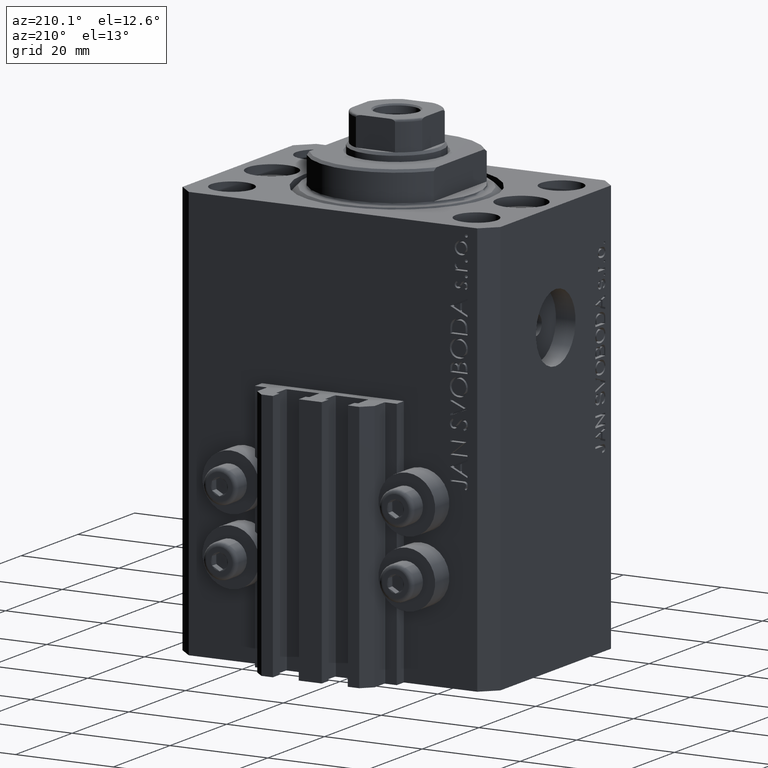
[diagram: clean part render]
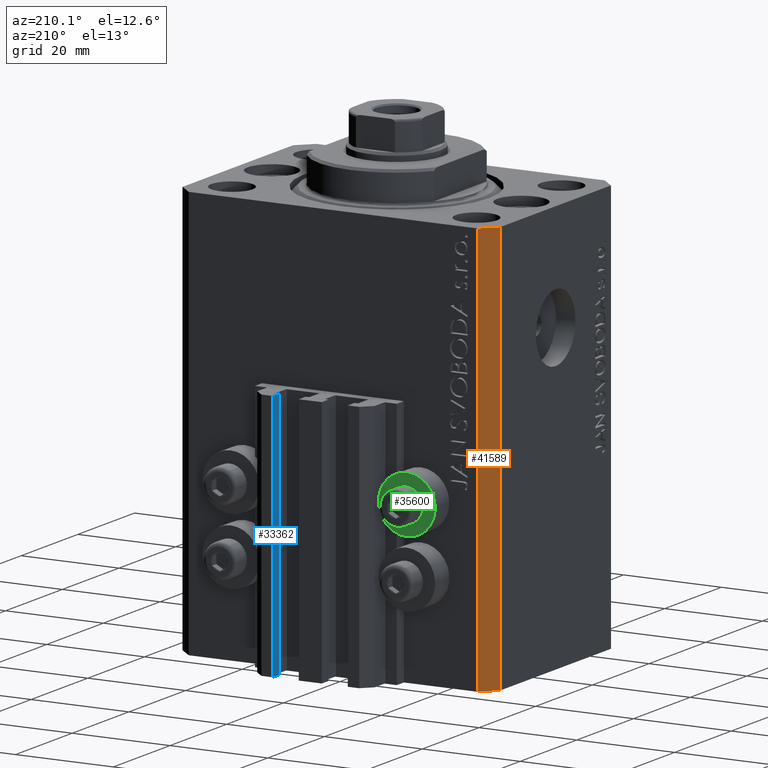
[diagram: same view with three faces highlighted in distinct colors, each labeled with its STEP entity id]
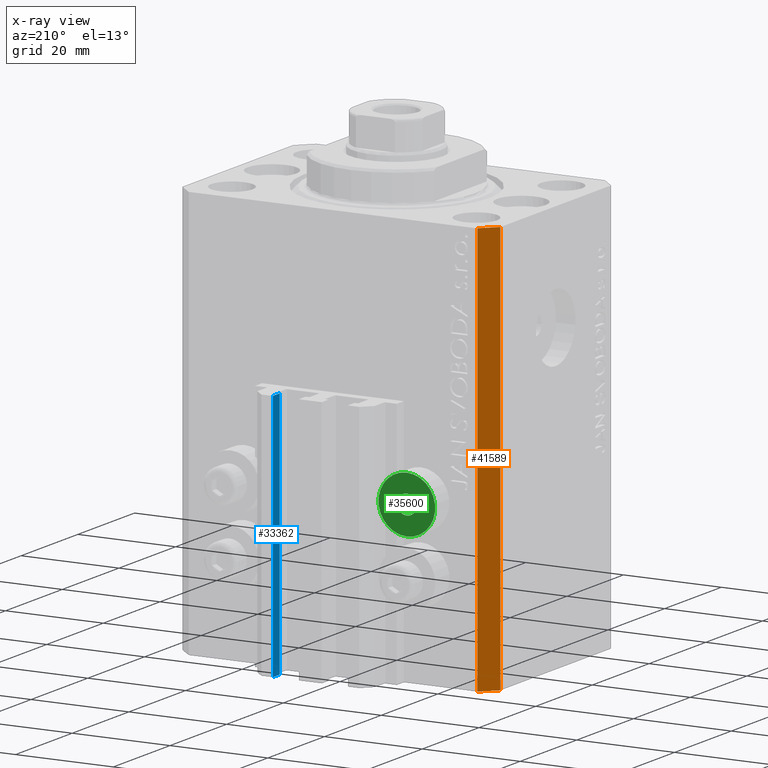
[diagram: x-ray of the same camera — body ghosted, the three highlighted faces saturated]
A machine part, auxiliary view with three faces highlighted in distinct colors.
The next image is the same camera in x-ray (body ghosted, the three faces saturated) — at least one of them is partly hidden behind the body in this view.
Their STEP definitions:

[orange] entity #41589 — the highlighted planar face has unit normal (-0.7071, 0.7071, 0).
#51 = CARTESIAN_POINT ( 'NONE',  ( -29.49999999999650413, 22.49999999999949907, 0.000000000000000000 ) ) ;
#397 = VERTEX_POINT ( 'NONE', #28462 ) ;
#2373 = CARTESIAN_POINT ( 'NONE',  ( -32.49999999999650413, 19.49999999999949907, -84.00000000000000000 ) ) ;
#3519 = EDGE_LOOP ( 'NONE', ( #45911, #42032, #19984, #19112 ) ) ;
#4166 = LINE ( 'NONE', #7509, #43514 ) ;
#4969 = AXIS2_PLACEMENT_3D ( 'NONE', #46401, #21113, #20653 ) ;
#5034 = LINE ( 'NONE', #2373, #6596 ) ;
#6596 = VECTOR ( 'NONE', #16926, 1000.000000000000000 ) ;
#7509 = CARTESIAN_POINT ( 'NONE',  ( -29.49999999999650413, 22.49999999999949907, -84.00000000000000000 ) ) ;
#7609 = EDGE_CURVE ( 'NONE', #32660, #46155, #29611, .T. ) ;
#9686 = FACE_OUTER_BOUND ( 'NONE', #3519, .T. ) ;
#12155 = EDGE_CURVE ( 'NONE', #397, #36096, #32424, .T. ) ;
#16926 = DIRECTION ( 'NONE',  ( 0.000000000000000000, 0.000000000000000000, 1.000000000000000000 ) ) ;
#17819 = VECTOR ( 'NONE', #21969, 1000.000000000000114 ) ;
#19112 = ORIENTED_EDGE ( 'NONE', *, *, #46066, .T. ) ;
#19984 = ORIENTED_EDGE ( 'NONE', *, *, #12155, .T. ) ;
#20653 = DIRECTION ( 'NONE',  ( -0.7071067811865474617, -0.7071067811865474617, 0.000000000000000000 ) ) ;
#21113 = DIRECTION ( 'NONE',  ( -0.7071067811865475727, 0.7071067811865475727, 0.000000000000000000 ) ) ;
#21476 = CARTESIAN_POINT ( 'NONE',  ( -29.49999999999650413, 22.49999999999949907, 0.000000000000000000 ) ) ;
#21969 = DIRECTION ( 'NONE',  ( -0.7071067811865474617, -0.7071067811865474617, 0.000000000000000000 ) ) ;
#28462 = CARTESIAN_POINT ( 'NONE',  ( -29.49999999999650413, 22.49999999999949907, -84.00000000000000000 ) ) ;
#29334 = CARTESIAN_POINT ( 'NONE',  ( -29.49999999999650413, 22.49999999999949907, -84.00000000000000000 ) ) ;
#29611 = LINE ( 'NONE', #21476, #17819 ) ;
#31300 = EDGE_CURVE ( 'NONE', #397, #32660, #4166, .T. ) ;
#31851 = PLANE ( 'NONE',  #4969 ) ;
#32424 = LINE ( 'NONE', #29334, #43851 ) ;
#32656 = CARTESIAN_POINT ( 'NONE',  ( -32.49999999999650413, 19.49999999999949907, 0.000000000000000000 ) ) ;
#32660 = VERTEX_POINT ( 'NONE', #51 ) ;
#36096 = VERTEX_POINT ( 'NONE', #44213 ) ;
#41589 = ADVANCED_FACE ( 'NONE', ( #9686 ), #31851, .T. ) ;
#42032 = ORIENTED_EDGE ( 'NONE', *, *, #31300, .F. ) ;
#43514 = VECTOR ( 'NONE', #45354, 1000.000000000000000 ) ;
#43851 = VECTOR ( 'NONE', #46986, 1000.000000000000114 ) ;
#44213 = CARTESIAN_POINT ( 'NONE',  ( -32.49999999999650413, 19.49999999999949907, -84.00000000000000000 ) ) ;
#45354 = DIRECTION ( 'NONE',  ( 0.000000000000000000, 0.000000000000000000, 1.000000000000000000 ) ) ;
#45911 = ORIENTED_EDGE ( 'NONE', *, *, #7609, .F. ) ;
#46066 = EDGE_CURVE ( 'NONE', #36096, #46155, #5034, .T. ) ;
#46155 = VERTEX_POINT ( 'NONE', #32656 ) ;
#46401 = CARTESIAN_POINT ( 'NONE',  ( -29.49999999999650413, 22.49999999999949907, -84.00000000000000000 ) ) ;
#46986 = DIRECTION ( 'NONE',  ( -0.7071067811865474617, -0.7071067811865474617, 0.000000000000000000 ) ) ;

[blue] entity #33362 — the highlighted planar face has unit normal (-1, -0, 0).
#565 = DIRECTION ( 'NONE',  ( 3.614007241618365534E-16, -1.000000000000000000, 0.000000000000000000 ) ) ;
#2073 = ORIENTED_EDGE ( 'NONE', *, *, #16237, .F. ) ;
#3496 = EDGE_CURVE ( 'NONE', #29297, #38063, #22223, .T. ) ;
#3659 = VECTOR ( 'NONE', #43927, 1000.000000000000000 ) ;
#4259 = CARTESIAN_POINT ( 'NONE',  ( 7.649999999999995026, 30.49999999999949196, -84.00000000000000000 ) ) ;
#9367 = EDGE_LOOP ( 'NONE', ( #43770, #2073, #15001, #23646 ) ) ;
#10769 = CARTESIAN_POINT ( 'NONE',  ( 7.649999999999995026, 30.49999999999949196, -84.00000000000000000 ) ) ;
#11319 = PLANE ( 'NONE',  #36716 ) ;
#11385 = CARTESIAN_POINT ( 'NONE',  ( 7.649999999999995914, 28.09999999999950404, -84.00000000000000000 ) ) ;
#12260 = EDGE_CURVE ( 'NONE', #45281, #38063, #18851, .T. ) ;
#14382 = CARTESIAN_POINT ( 'NONE',  ( 7.649999999999995026, 30.49999999999949196, -33.00000000000000000 ) ) ;
#14640 = FACE_OUTER_BOUND ( 'NONE', #9367, .T. ) ;
#15001 = ORIENTED_EDGE ( 'NONE', *, *, #40504, .T. ) ;
#15236 = DIRECTION ( 'NONE',  ( 3.614007241618365534E-16, -1.000000000000000000, 0.000000000000000000 ) ) ;
#16237 = EDGE_CURVE ( 'NONE', #31633, #29297, #17913, .T. ) ;
#17913 = LINE ( 'NONE', #10769, #41661 ) ;
#18851 = LINE ( 'NONE', #44366, #43075 ) ;
#21207 = CARTESIAN_POINT ( 'NONE',  ( 7.649999999999995026, 30.49999999999949196, -84.00000000000000000 ) ) ;
#22223 = LINE ( 'NONE', #25815, #3659 ) ;
#23646 = ORIENTED_EDGE ( 'NONE', *, *, #12260, .T. ) ;
#25309 = DIRECTION ( 'NONE',  ( 0.000000000000000000, 0.000000000000000000, 1.000000000000000000 ) ) ;
#25815 = CARTESIAN_POINT ( 'NONE',  ( 7.649999999999995026, 30.49999999999949196, -33.00000000000000000 ) ) ;
#26339 = CARTESIAN_POINT ( 'NONE',  ( 7.649999999999995026, 30.49999999999949196, -84.00000000000000000 ) ) ;
#29297 = VERTEX_POINT ( 'NONE', #14382 ) ;
#29993 = VECTOR ( 'NONE', #15236, 1000.000000000000000 ) ;
#31633 = VERTEX_POINT ( 'NONE', #21207 ) ;
#33253 = DIRECTION ( 'NONE',  ( -1.000000000000000000, -3.614007241618365534E-16, 0.000000000000000000 ) ) ;
#33362 = ADVANCED_FACE ( 'NONE', ( #14640 ), #11319, .T. ) ;
#36097 = CARTESIAN_POINT ( 'NONE',  ( 7.649999999999995914, 28.09999999999950404, -33.00000000000000000 ) ) ;
#36716 = AXIS2_PLACEMENT_3D ( 'NONE', #26339, #33253, #565 ) ;
#36935 = LINE ( 'NONE', #4259, #29993 ) ;
#38063 = VERTEX_POINT ( 'NONE', #36097 ) ;
#40504 = EDGE_CURVE ( 'NONE', #31633, #45281, #36935, .T. ) ;
#41661 = VECTOR ( 'NONE', #25309, 1000.000000000000000 ) ;
#43075 = VECTOR ( 'NONE', #44840, 1000.000000000000000 ) ;
#43770 = ORIENTED_EDGE ( 'NONE', *, *, #3496, .F. ) ;
#43927 = DIRECTION ( 'NONE',  ( 3.614007241618365534E-16, -1.000000000000000000, 0.000000000000000000 ) ) ;
#44366 = CARTESIAN_POINT ( 'NONE',  ( 7.649999999999995914, 28.09999999999950404, -84.00000000000000000 ) ) ;
#44840 = DIRECTION ( 'NONE',  ( 0.000000000000000000, 0.000000000000000000, 1.000000000000000000 ) ) ;
#45281 = VERTEX_POINT ( 'NONE', #11385 ) ;

[green] entity #35600 — the highlighted planar face has unit normal (0, -1, 0).
#854 = EDGE_LOOP ( 'NONE', ( #26531, #4633 ) ) ;
#1705 = CARTESIAN_POINT ( 'NONE',  ( -18.00000000000000355, 27.49999999996051514, -50.39999999999999858 ) ) ;
#1733 = AXIS2_PLACEMENT_3D ( 'NONE', #1705, #8885, #31053 ) ;
#2383 = EDGE_CURVE ( 'NONE', #5724, #41838, #22696, .T. ) ;
#3354 = PLANE ( 'NONE',  #36821 ) ;
#3846 = FACE_OUTER_BOUND ( 'NONE', #854, .T. ) ;
#4633 = ORIENTED_EDGE ( 'NONE', *, *, #42058, .T. ) ;
#4676 = CARTESIAN_POINT ( 'NONE',  ( -18.00000000000000355, 27.49999999996051514, -50.39999999999999858 ) ) ;
#4752 = EDGE_LOOP ( 'NONE', ( #24716, #23335 ) ) ;
#4931 = EDGE_CURVE ( 'NONE', #31791, #27853, #44209, .T. ) ;
#5304 = DIRECTION ( 'NONE',  ( 0.000000000000000000, 0.000000000000000000, 1.000000000000000000 ) ) ;
#5724 = VERTEX_POINT ( 'NONE', #14061 ) ;
#6044 = CARTESIAN_POINT ( 'NONE',  ( -18.00000000000000355, 27.49999999996051514, -56.20000000000000284 ) ) ;
#6106 = AXIS2_PLACEMENT_3D ( 'NONE', #21625, #14478, #43569 ) ;
#8041 = CIRCLE ( 'NONE', #15641, 5.799999999999999822 ) ;
#8885 = DIRECTION ( 'NONE',  ( 0.000000000000000000, 1.000000000000000000, 0.000000000000000000 ) ) ;
#11262 = CARTESIAN_POINT ( 'NONE',  ( -12.20000000000000284, 27.49999999996051514, -50.39999999999999858 ) ) ;
#11698 = CARTESIAN_POINT ( 'NONE',  ( -18.00000000000000355, 27.49999999996051514, -48.39999999999999858 ) ) ;
#14061 = CARTESIAN_POINT ( 'NONE',  ( -18.00000000000000355, 27.49999999996051514, -44.60000000000000142 ) ) ;
#14478 = DIRECTION ( 'NONE',  ( 0.000000000000000000, 1.000000000000000000, 0.000000000000000000 ) ) ;
#14732 = CARTESIAN_POINT ( 'NONE',  ( -18.00000000000000355, 27.49999999996051514, -52.40000000000000568 ) ) ;
#15641 = AXIS2_PLACEMENT_3D ( 'NONE', #31740, #30827, #5304 ) ;
#21625 = CARTESIAN_POINT ( 'NONE',  ( -18.00000000000000355, 27.49999999996051514, -50.39999999999999858 ) ) ;
#22696 = CIRCLE ( 'NONE', #46255, 5.799999999999999822 ) ;
#23335 = ORIENTED_EDGE ( 'NONE', *, *, #39138, .F. ) ;
#24716 = ORIENTED_EDGE ( 'NONE', *, *, #4931, .F. ) ;
#25072 = DIRECTION ( 'NONE',  ( 0.000000000000000000, -1.000000000000000000, 0.000000000000000000 ) ) ;
#25679 = DIRECTION ( 'NONE',  ( 0.000000000000000000, 0.000000000000000000, 1.000000000000000000 ) ) ;
#25924 = DIRECTION ( 'NONE',  ( -0.000000000000000000, 1.000000000000000000, -0.000000000000000000 ) ) ;
#26149 = CIRCLE ( 'NONE', #1733, 2.000000000000001776 ) ;
#26531 = ORIENTED_EDGE ( 'NONE', *, *, #2383, .T. ) ;
#27853 = VERTEX_POINT ( 'NONE', #14732 ) ;
#30827 = DIRECTION ( 'NONE',  ( -0.000000000000000000, 1.000000000000000000, -0.000000000000000000 ) ) ;
#31053 = DIRECTION ( 'NONE',  ( 0.000000000000000000, 0.000000000000000000, 1.000000000000000000 ) ) ;
#31740 = CARTESIAN_POINT ( 'NONE',  ( -18.00000000000000355, 27.49999999996051514, -50.39999999999999858 ) ) ;
#31791 = VERTEX_POINT ( 'NONE', #11698 ) ;
#32215 = FACE_BOUND ( 'NONE', #4752, .T. ) ;
#35600 = ADVANCED_FACE ( 'NONE', ( #32215, #3846 ), #3354, .F. ) ;
#36821 = AXIS2_PLACEMENT_3D ( 'NONE', #11262, #25072, #43669 ) ;
#39138 = EDGE_CURVE ( 'NONE', #27853, #31791, #26149, .T. ) ;
#41838 = VERTEX_POINT ( 'NONE', #6044 ) ;
#42058 = EDGE_CURVE ( 'NONE', #41838, #5724, #8041, .T. ) ;
#43569 = DIRECTION ( 'NONE',  ( 0.000000000000000000, 0.000000000000000000, 1.000000000000000000 ) ) ;
#43669 = DIRECTION ( 'NONE',  ( 0.000000000000000000, -0.000000000000000000, -1.000000000000000000 ) ) ;
#44209 = CIRCLE ( 'NONE', #6106, 2.000000000000001776 ) ;
#46255 = AXIS2_PLACEMENT_3D ( 'NONE', #4676, #25924, #25679 ) ;